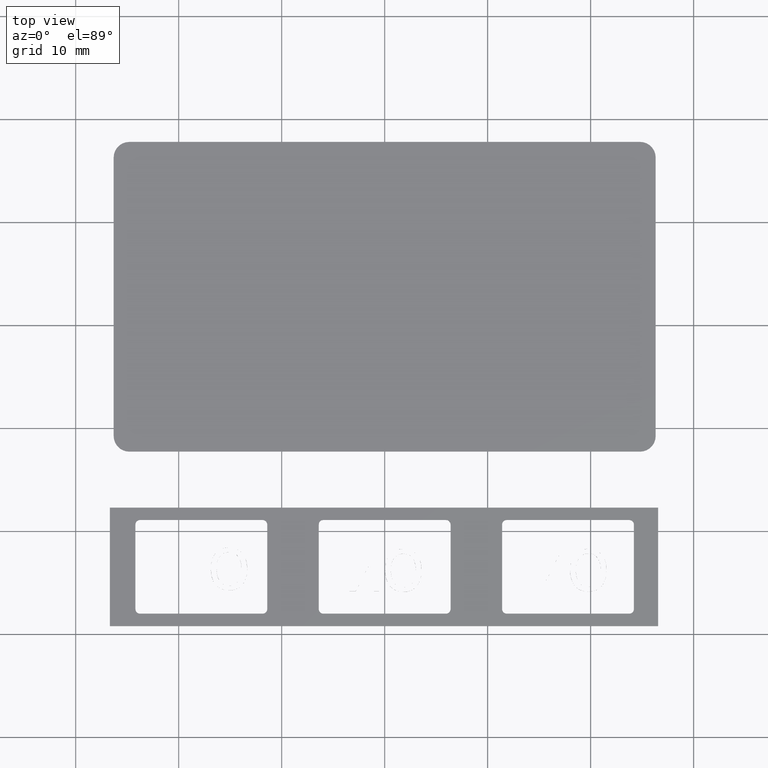
[diagram: clean part render]
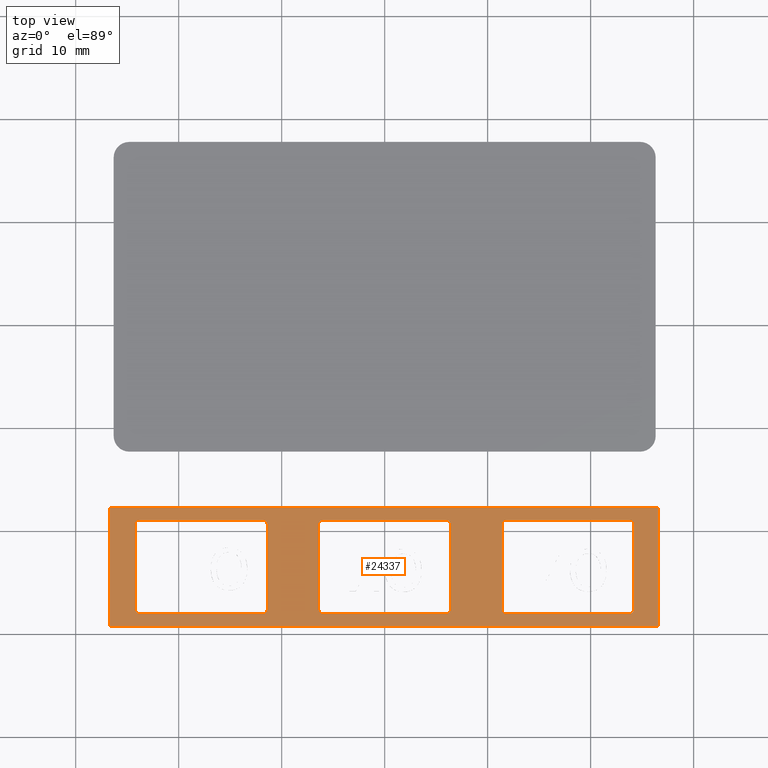
[diagram: same view with one face highlighted and labeled with its STEP entity id]
A machine part, top view. The second image highlights one B-rep face of the part: STEP entity #24337.
In plain terms, the highlighted planar face has unit normal (-0, 0, 1).
Its self-contained STEP definition (entity closure, byte-faithful):
#40=FACE_BOUND('',#6912,.T.);
#41=FACE_BOUND('',#6913,.T.);
#42=FACE_BOUND('',#6914,.T.);
#123=PLANE('',#27245);
#1488=LINE('',#40658,#3135);
#1489=LINE('',#40660,#3136);
#1490=LINE('',#40662,#3137);
#1491=LINE('',#40663,#3138);
#1492=LINE('',#40666,#3139);
#1493=LINE('',#40670,#3140);
#1494=LINE('',#40674,#3141);
#1495=LINE('',#40678,#3142);
#1496=LINE('',#40682,#3143);
#1497=LINE('',#40686,#3144);
#1498=LINE('',#40690,#3145);
#1499=LINE('',#40694,#3146);
#1500=LINE('',#40698,#3147);
#1501=LINE('',#40702,#3148);
#1502=LINE('',#40706,#3149);
#1503=LINE('',#40710,#3150);
#3135=VECTOR('',#33491,53.227375755189);
#3136=VECTOR('',#33492,11.5);
#3137=VECTOR('',#33493,53.227375755189);
#3138=VECTOR('',#33494,11.5);
#3139=VECTOR('',#33495,8.2);
#3140=VECTOR('',#33498,11.9);
#3141=VECTOR('',#33501,8.2);
#3142=VECTOR('',#33504,11.9);
#3143=VECTOR('',#33507,11.9);
#3144=VECTOR('',#33510,8.2);
#3145=VECTOR('',#33513,11.9);
#3146=VECTOR('',#33516,8.2);
#3147=VECTOR('',#33519,8.2);
#3148=VECTOR('',#33522,11.9);
#3149=VECTOR('',#33525,8.2);
#3150=VECTOR('',#33528,11.9);
#5615=FACE_OUTER_BOUND('',#6911,.T.);
#6911=EDGE_LOOP('',(#20088,#20089,#20090,#20091));
#6912=EDGE_LOOP('',(#20092,#20093,#20094,#20095,#20096,#20097,#20098,#20099));
#6913=EDGE_LOOP('',(#20100,#20101,#20102,#20103,#20104,#20105,#20106,#20107));
#6914=EDGE_LOOP('',(#20108,#20109,#20110,#20111,#20112,#20113,#20114,#20115));
#9023=CIRCLE('',#27246,0.45);
#9024=CIRCLE('',#27247,0.45);
#9025=CIRCLE('',#27248,0.45);
#9026=CIRCLE('',#27249,0.45);
#9027=CIRCLE('',#27250,0.45);
#9028=CIRCLE('',#27251,0.45);
#9029=CIRCLE('',#27252,0.45);
#9030=CIRCLE('',#27253,0.45);
#9031=CIRCLE('',#27254,0.45);
#9032=CIRCLE('',#27255,0.45);
#9033=CIRCLE('',#27256,0.45);
#9034=CIRCLE('',#27257,0.45);
#10801=VERTEX_POINT('',#40656);
#10802=VERTEX_POINT('',#40657);
#10803=VERTEX_POINT('',#40659);
#10804=VERTEX_POINT('',#40661);
#10805=VERTEX_POINT('',#40664);
#10806=VERTEX_POINT('',#40665);
#10807=VERTEX_POINT('',#40667);
#10808=VERTEX_POINT('',#40669);
#10809=VERTEX_POINT('',#40671);
#10810=VERTEX_POINT('',#40673);
#10811=VERTEX_POINT('',#40675);
#10812=VERTEX_POINT('',#40677);
#10813=VERTEX_POINT('',#40680);
#10814=VERTEX_POINT('',#40681);
#10815=VERTEX_POINT('',#40683);
#10816=VERTEX_POINT('',#40685);
#10817=VERTEX_POINT('',#40687);
#10818=VERTEX_POINT('',#40689);
#10819=VERTEX_POINT('',#40691);
#10820=VERTEX_POINT('',#40693);
#10821=VERTEX_POINT('',#40696);
#10822=VERTEX_POINT('',#40697);
#10823=VERTEX_POINT('',#40699);
#10824=VERTEX_POINT('',#40701);
#10825=VERTEX_POINT('',#40703);
#10826=VERTEX_POINT('',#40705);
#10827=VERTEX_POINT('',#40707);
#10828=VERTEX_POINT('',#40709);
#14012=EDGE_CURVE('',#10801,#10802,#1488,.T.);
#14013=EDGE_CURVE('',#10803,#10801,#1489,.T.);
#14014=EDGE_CURVE('',#10804,#10803,#1490,.T.);
#14015=EDGE_CURVE('',#10802,#10804,#1491,.T.);
#14016=EDGE_CURVE('',#10805,#10806,#1492,.T.);
#14017=EDGE_CURVE('',#10807,#10805,#9023,.T.);
#14018=EDGE_CURVE('',#10808,#10807,#1493,.T.);
#14019=EDGE_CURVE('',#10809,#10808,#9024,.T.);
#14020=EDGE_CURVE('',#10810,#10809,#1494,.T.);
#14021=EDGE_CURVE('',#10811,#10810,#9025,.T.);
#14022=EDGE_CURVE('',#10812,#10811,#1495,.T.);
#14023=EDGE_CURVE('',#10806,#10812,#9026,.T.);
#14024=EDGE_CURVE('',#10813,#10814,#1496,.T.);
#14025=EDGE_CURVE('',#10815,#10813,#9027,.T.);
#14026=EDGE_CURVE('',#10816,#10815,#1497,.T.);
#14027=EDGE_CURVE('',#10817,#10816,#9028,.T.);
#14028=EDGE_CURVE('',#10818,#10817,#1498,.T.);
#14029=EDGE_CURVE('',#10819,#10818,#9029,.T.);
#14030=EDGE_CURVE('',#10820,#10819,#1499,.T.);
#14031=EDGE_CURVE('',#10814,#10820,#9030,.T.);
#14032=EDGE_CURVE('',#10821,#10822,#1500,.T.);
#14033=EDGE_CURVE('',#10823,#10821,#9031,.T.);
#14034=EDGE_CURVE('',#10824,#10823,#1501,.T.);
#14035=EDGE_CURVE('',#10825,#10824,#9032,.T.);
#14036=EDGE_CURVE('',#10826,#10825,#1502,.T.);
#14037=EDGE_CURVE('',#10827,#10826,#9033,.T.);
#14038=EDGE_CURVE('',#10828,#10827,#1503,.T.);
#14039=EDGE_CURVE('',#10822,#10828,#9034,.T.);
#20088=ORIENTED_EDGE('',*,*,#14012,.F.);
#20089=ORIENTED_EDGE('',*,*,#14013,.F.);
#20090=ORIENTED_EDGE('',*,*,#14014,.F.);
#20091=ORIENTED_EDGE('',*,*,#14015,.F.);
#20092=ORIENTED_EDGE('',*,*,#14016,.F.);
#20093=ORIENTED_EDGE('',*,*,#14017,.F.);
#20094=ORIENTED_EDGE('',*,*,#14018,.F.);
#20095=ORIENTED_EDGE('',*,*,#14019,.F.);
#20096=ORIENTED_EDGE('',*,*,#14020,.F.);
#20097=ORIENTED_EDGE('',*,*,#14021,.F.);
#20098=ORIENTED_EDGE('',*,*,#14022,.F.);
#20099=ORIENTED_EDGE('',*,*,#14023,.F.);
#20100=ORIENTED_EDGE('',*,*,#14024,.F.);
#20101=ORIENTED_EDGE('',*,*,#14025,.F.);
#20102=ORIENTED_EDGE('',*,*,#14026,.F.);
#20103=ORIENTED_EDGE('',*,*,#14027,.F.);
#20104=ORIENTED_EDGE('',*,*,#14028,.F.);
#20105=ORIENTED_EDGE('',*,*,#14029,.F.);
#20106=ORIENTED_EDGE('',*,*,#14030,.F.);
#20107=ORIENTED_EDGE('',*,*,#14031,.F.);
#20108=ORIENTED_EDGE('',*,*,#14032,.F.);
#20109=ORIENTED_EDGE('',*,*,#14033,.F.);
#20110=ORIENTED_EDGE('',*,*,#14034,.F.);
#20111=ORIENTED_EDGE('',*,*,#14035,.F.);
#20112=ORIENTED_EDGE('',*,*,#14036,.F.);
#20113=ORIENTED_EDGE('',*,*,#14037,.F.);
#20114=ORIENTED_EDGE('',*,*,#14038,.F.);
#20115=ORIENTED_EDGE('',*,*,#14039,.F.);
#24337=ADVANCED_FACE('',(#5615,#40,#41,#42),#123,.F.);
#27245=AXIS2_PLACEMENT_3D('',#40655,#33489,#33490);
#27246=AXIS2_PLACEMENT_3D('',#40668,#33496,#33497);
#27247=AXIS2_PLACEMENT_3D('',#40672,#33499,#33500);
#27248=AXIS2_PLACEMENT_3D('',#40676,#33502,#33503);
#27249=AXIS2_PLACEMENT_3D('',#40679,#33505,#33506);
#27250=AXIS2_PLACEMENT_3D('',#40684,#33508,#33509);
#27251=AXIS2_PLACEMENT_3D('',#40688,#33511,#33512);
#27252=AXIS2_PLACEMENT_3D('',#40692,#33514,#33515);
#27253=AXIS2_PLACEMENT_3D('',#40695,#33517,#33518);
#27254=AXIS2_PLACEMENT_3D('',#40700,#33520,#33521);
#27255=AXIS2_PLACEMENT_3D('',#40704,#33523,#33524);
#27256=AXIS2_PLACEMENT_3D('',#40708,#33526,#33527);
#27257=AXIS2_PLACEMENT_3D('',#40711,#33529,#33530);
#33489=DIRECTION('center_axis',(-3.5619655373375E-16,3.41278292167792E-17,
1.));
#33490=DIRECTION('ref_axis',(-1.,-1.4210854715202E-15,-3.5527136788005E-16));
#33491=DIRECTION('',(1.,2.75152572753243E-16,-1.19117678683756E-15));
#33492=DIRECTION('',(2.75152572753243E-16,-1.,-1.03039885219755E-17));
#33493=DIRECTION('',(-1.,-2.75152572753243E-16,1.19117678683756E-15));
#33494=DIRECTION('',(-2.75152572753243E-16,1.,1.03039885219755E-17));
#33495=DIRECTION('',(8.16724779887465E-16,-1.,3.41278292167795E-17));
#33496=DIRECTION('center_axis',(3.5619655373375E-16,-3.41278292167792E-17,
-1.));
#33497=DIRECTION('ref_axis',(-2.75152572753243E-16,1.,-3.41278292167793E-17));
#33498=DIRECTION('',(1.,2.75152572753243E-16,3.5619655373375E-16));
#33499=DIRECTION('center_axis',(3.5619655373375E-16,-3.41278292167792E-17,
-1.));
#33500=DIRECTION('ref_axis',(-1.,-2.75152572753243E-16,-3.5619655373375E-16));
#33501=DIRECTION('',(-8.16724779887465E-16,1.,-3.41278292167795E-17));
#33502=DIRECTION('center_axis',(3.5619655373375E-16,-3.41278292167792E-17,
-1.));
#33503=DIRECTION('ref_axis',(2.75152572753243E-16,-1.,3.41278292167793E-17));
#33504=DIRECTION('',(-1.,-2.75152572753243E-16,-3.5619655373375E-16));
#33505=DIRECTION('center_axis',(3.5619655373375E-16,-3.41278292167792E-17,
-1.));
#33506=DIRECTION('ref_axis',(1.,2.75152572753243E-16,3.5619655373375E-16));
#33507=DIRECTION('',(-1.,-2.75152572753243E-16,-3.5619655373375E-16));
#33508=DIRECTION('center_axis',(3.5619655373375E-16,-3.41278292167792E-17,
-1.));
#33509=DIRECTION('ref_axis',(1.,2.75152572753243E-16,3.5619655373375E-16));
#33510=DIRECTION('',(2.75152572753243E-16,-1.,3.41278292167793E-17));
#33511=DIRECTION('center_axis',(3.5619655373375E-16,-3.41278292167792E-17,
-1.));
#33512=DIRECTION('ref_axis',(-2.75152572753243E-16,1.,-3.41278292167793E-17));
#33513=DIRECTION('',(1.,2.75152572753243E-16,3.5619655373375E-16));
#33514=DIRECTION('center_axis',(3.5619655373375E-16,-3.41278292167792E-17,
-1.));
#33515=DIRECTION('ref_axis',(-1.,-2.75152572753243E-16,-3.5619655373375E-16));
#33516=DIRECTION('',(-8.16724779887465E-16,1.,-3.41278292167795E-17));
#33517=DIRECTION('center_axis',(3.5619655373375E-16,-3.41278292167792E-17,
-1.));
#33518=DIRECTION('ref_axis',(2.75152572753243E-16,-1.,3.41278292167793E-17));
#33519=DIRECTION('',(1.35829698702169E-15,-1.,3.41278292167797E-17));
#33520=DIRECTION('center_axis',(3.5619655373375E-16,-3.41278292167792E-17,
-1.));
#33521=DIRECTION('ref_axis',(-2.75152572753243E-16,1.,-3.41278292167793E-17));
#33522=DIRECTION('',(1.,2.75152572753243E-16,3.5619655373375E-16));
#33523=DIRECTION('center_axis',(3.5619655373375E-16,-3.41278292167792E-17,
-1.));
#33524=DIRECTION('ref_axis',(-1.,-2.75152572753243E-16,-3.5619655373375E-16));
#33525=DIRECTION('',(-2.75152572753243E-16,1.,-3.41278292167793E-17));
#33526=DIRECTION('center_axis',(3.5619655373375E-16,-3.41278292167792E-17,
-1.));
#33527=DIRECTION('ref_axis',(2.75152572753243E-16,-1.,3.41278292167793E-17));
#33528=DIRECTION('',(-1.,-2.75152572753243E-16,-3.5619655373375E-16));
#33529=DIRECTION('center_axis',(3.5619655373375E-16,-3.41278292167792E-17,
-1.));
#33530=DIRECTION('ref_axis',(1.,2.75152572753243E-16,3.5619655373375E-16));
#40655=CARTESIAN_POINT('Origin',(-0.0647579174986809,-93.4500000000002,
0.574999999999957));
#40656=CARTESIAN_POINT('',(-26.6784457950932,-99.2000000000002,0.575000000000028));
#40657=CARTESIAN_POINT('',(26.5489299600958,-99.2000000000002,0.574999999999966));
#40658=CARTESIAN_POINT('',(26.5489299600958,-99.2000000000002,0.574999999999966));
#40659=CARTESIAN_POINT('',(-26.6784457950932,-87.7000000000002,0.575000000000028));
#40660=CARTESIAN_POINT('',(-26.6784457950932,-99.2000000000002,0.575000000000028));
#40661=CARTESIAN_POINT('',(26.5489299600958,-87.7000000000002,0.574999999999966));
#40662=CARTESIAN_POINT('',(-26.6784457950932,-87.7000000000002,0.575000000000028));
#40663=CARTESIAN_POINT('',(26.5489299600958,-87.7000000000002,0.574999999999966));
#40664=CARTESIAN_POINT('',(-11.3999999999995,-89.3500000000002,0.57500000000001));
#40665=CARTESIAN_POINT('',(-11.3999999999995,-97.5500000000002,0.57500000000001));
#40666=CARTESIAN_POINT('',(-11.3999999999995,-95.5000000000002,0.574999999999957));
#40667=CARTESIAN_POINT('',(-11.8499999999995,-88.9000000000002,0.575000000000019));
#40668=CARTESIAN_POINT('Origin',(-11.8499999999995,-89.3500000000002,0.574999999999957));
#40669=CARTESIAN_POINT('',(-23.7499999999995,-88.9000000000002,0.575000000000028));
#40670=CARTESIAN_POINT('',(-5.95737895874908,-88.9000000000002,0.574999999999957));
#40671=CARTESIAN_POINT('',(-24.1999999999995,-89.3500000000002,0.575000000000028));
#40672=CARTESIAN_POINT('Origin',(-23.7499999999995,-89.3500000000002,0.574999999999948));
#40673=CARTESIAN_POINT('',(-24.1999999999995,-97.5500000000002,0.575000000000028));
#40674=CARTESIAN_POINT('',(-24.1999999999995,-91.4000000000002,0.574999999999948));
#40675=CARTESIAN_POINT('',(-23.7499999999995,-98.0000000000002,0.575000000000028));
#40676=CARTESIAN_POINT('Origin',(-23.7499999999995,-97.5500000000002,0.574999999999948));
#40677=CARTESIAN_POINT('',(-11.8499999999995,-98.0000000000002,0.575000000000019));
#40678=CARTESIAN_POINT('',(-11.9073789587491,-98.0000000000002,0.574999999999957));
#40679=CARTESIAN_POINT('Origin',(-11.8499999999995,-97.5500000000002,0.574999999999957));
#40680=CARTESIAN_POINT('',(5.95000000000052,-98.0000000000002,0.574999999999983));
#40681=CARTESIAN_POINT('',(-5.94999999999948,-98.0000000000002,0.575000000000001));
#40682=CARTESIAN_POINT('',(-3.00737895874908,-98.0000000000002,0.574999999999957));
#40683=CARTESIAN_POINT('',(6.40000000000052,-97.5500000000002,0.574999999999983));
#40684=CARTESIAN_POINT('Origin',(5.95000000000052,-97.5500000000002,0.574999999999957));
#40685=CARTESIAN_POINT('',(6.40000000000052,-89.3500000000002,0.574999999999983));
#40686=CARTESIAN_POINT('',(6.40000000000052,-95.5000000000002,0.574999999999957));
#40687=CARTESIAN_POINT('',(5.95000000000052,-88.9000000000002,0.574999999999983));
#40688=CARTESIAN_POINT('Origin',(5.95000000000052,-89.3500000000002,0.574999999999957));
#40689=CARTESIAN_POINT('',(-5.94999999999948,-88.9000000000002,0.57500000000001));
#40690=CARTESIAN_POINT('',(2.94262104125092,-88.9000000000002,0.574999999999957));
#40691=CARTESIAN_POINT('',(-6.39999999999948,-89.3500000000002,0.57500000000001));
#40692=CARTESIAN_POINT('Origin',(-5.94999999999948,-89.3500000000002,0.574999999999957));
#40693=CARTESIAN_POINT('',(-6.39999999999947,-97.5500000000002,0.57500000000001));
#40694=CARTESIAN_POINT('',(-6.39999999999948,-91.4000000000002,0.574999999999957));
#40695=CARTESIAN_POINT('Origin',(-5.94999999999948,-97.5500000000002,0.574999999999957));
#40696=CARTESIAN_POINT('',(24.2000000000005,-89.3500000000002,0.574999999999966));
#40697=CARTESIAN_POINT('',(24.2000000000005,-97.5500000000002,0.574999999999966));
#40698=CARTESIAN_POINT('',(24.2000000000005,-95.5000000000002,0.574999999999966));
#40699=CARTESIAN_POINT('',(23.7500000000005,-88.9000000000002,0.574999999999966));
#40700=CARTESIAN_POINT('Origin',(23.7500000000005,-89.3500000000002,0.574999999999966));
#40701=CARTESIAN_POINT('',(11.8500000000005,-88.9000000000002,0.574999999999983));
#40702=CARTESIAN_POINT('',(11.8426210412509,-88.9000000000002,0.574999999999966));
#40703=CARTESIAN_POINT('',(11.4000000000005,-89.3500000000002,0.574999999999992));
#40704=CARTESIAN_POINT('Origin',(11.8500000000005,-89.3500000000002,0.574999999999966));
#40705=CARTESIAN_POINT('',(11.4000000000005,-97.5500000000002,0.574999999999983));
#40706=CARTESIAN_POINT('',(11.4000000000005,-91.4000000000002,0.574999999999966));
#40707=CARTESIAN_POINT('',(11.8500000000005,-98.0000000000002,0.574999999999983));
#40708=CARTESIAN_POINT('Origin',(11.8500000000005,-97.5500000000002,0.574999999999966));
#40709=CARTESIAN_POINT('',(23.7500000000005,-98.0000000000002,0.574999999999966));
#40710=CARTESIAN_POINT('',(5.89262104125092,-98.0000000000002,0.574999999999957));
#40711=CARTESIAN_POINT('Origin',(23.7500000000005,-97.5500000000002,0.574999999999966));